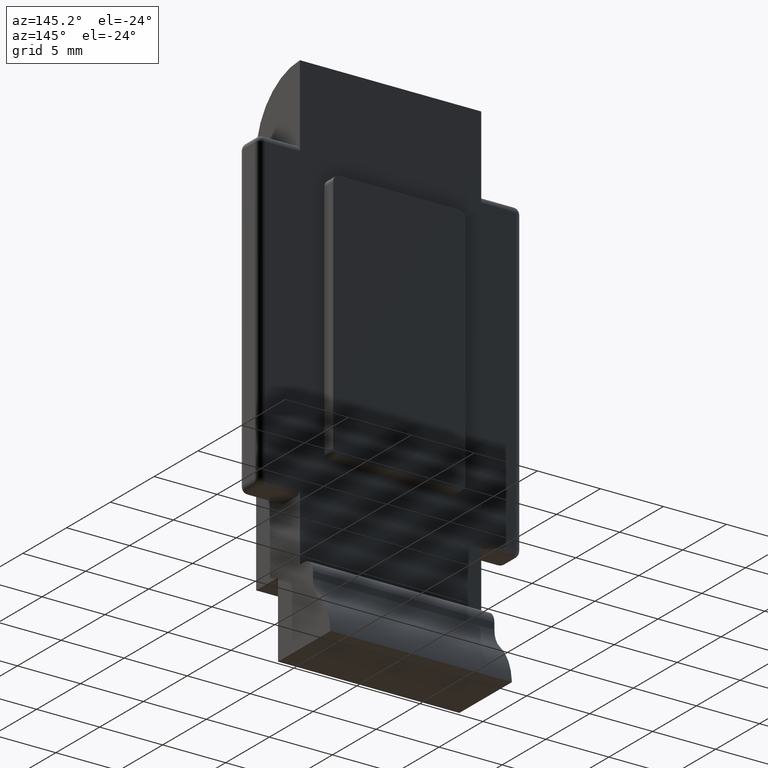
[diagram: clean part render]
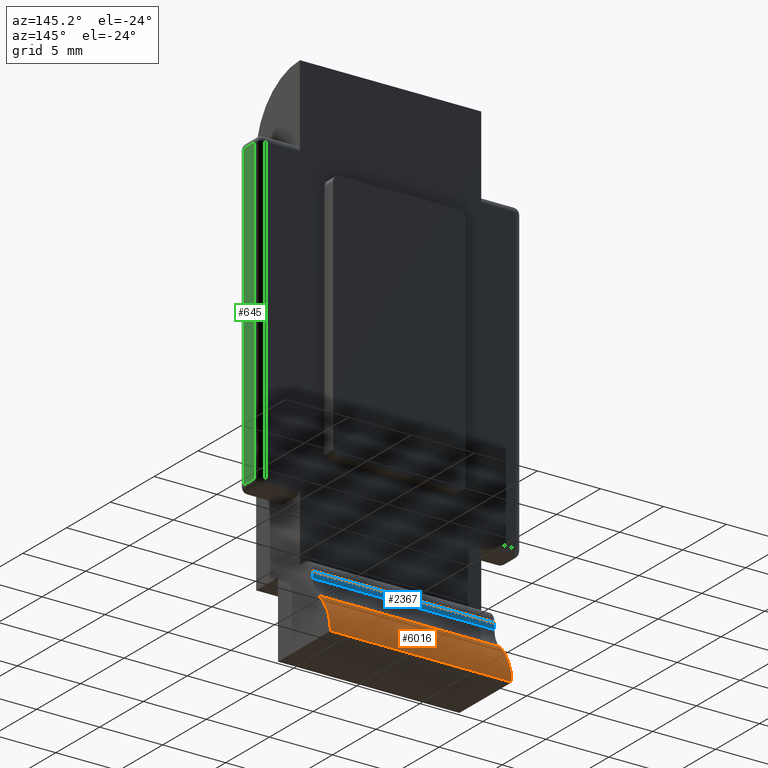
[diagram: same view with three faces highlighted in distinct colors, each labeled with its STEP entity id]
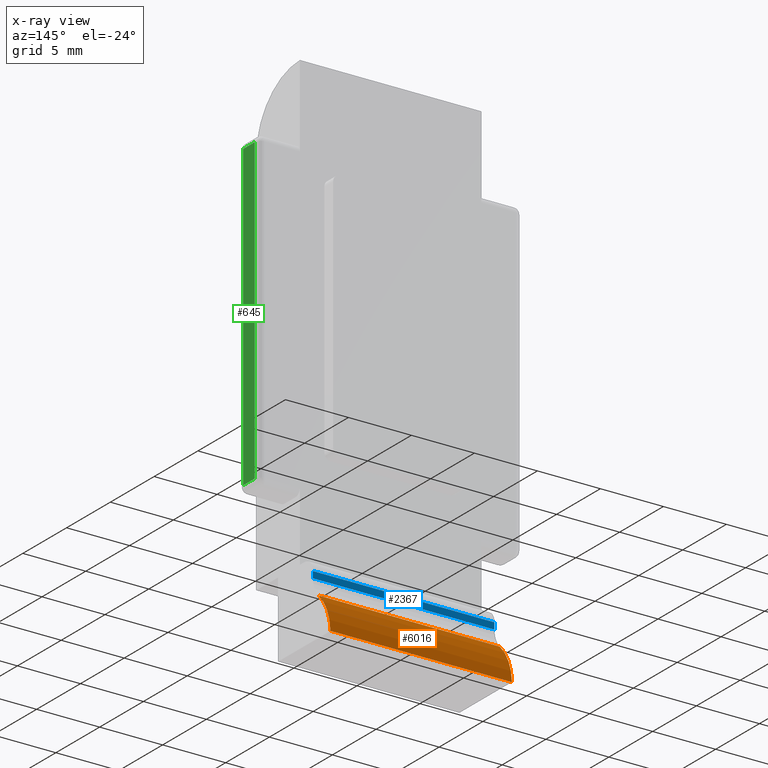
[diagram: x-ray of the same camera — body ghosted, the three highlighted faces saturated]
A machine part, auxiliary view with three faces highlighted in distinct colors.
The next image is the same camera in x-ray (body ghosted, the three faces saturated) — at least one of them is partly hidden behind the body in this view.
Their STEP definitions:

[orange] entity #6016 — the highlighted cylindrical surface (partial cylindrical patch) has radius 4.5 mm, axis along (1, 0, 0).
#326 = CYLINDRICAL_SURFACE ( 'NONE', #2310, 4.500000000000000900 ) ;
#992 = DIRECTION ( 'NONE',  ( -1.000000000000000000, -0.0000000000000000000, 0.0000000000000000000 ) ) ;
#1219 = DIRECTION ( 'NONE',  ( 1.000000000000000000, 0.0000000000000000000, 0.0000000000000000000 ) ) ;
#1513 = CARTESIAN_POINT ( 'NONE',  ( 14.40000000000000000, 3.499999999999996000, -5.999999999999998200 ) ) ;
#1570 = ORIENTED_EDGE ( 'NONE', *, *, #4689, .T. ) ;
#1807 = AXIS2_PLACEMENT_3D ( 'NONE', #7239, #992, #7961 ) ;
#1856 = CARTESIAN_POINT ( 'NONE',  ( 0.0000000000000000000, 2.116967167152068500, -2.964465433511271500 ) ) ;
#2310 = AXIS2_PLACEMENT_3D ( 'NONE', #7751, #5534, #6334 ) ;
#2403 = ORIENTED_EDGE ( 'NONE', *, *, #3708, .F. ) ;
#3168 = VERTEX_POINT ( 'NONE', #1856 ) ;
#3207 = DIRECTION ( 'NONE',  ( 1.000000000000000000, 0.0000000000000000000, 0.0000000000000000000 ) ) ;
#3708 = EDGE_CURVE ( 'NONE', #3168, #9021, #6477, .T. ) ;
#3819 = ORIENTED_EDGE ( 'NONE', *, *, #5608, .T. ) ;
#3828 = VECTOR ( 'NONE', #1219, 1000.000000000000000 ) ;
#3911 = DIRECTION ( 'NONE',  ( 0.0000000000000000000, 0.0000000000000000000, 1.000000000000000000 ) ) ;
#4429 = ORIENTED_EDGE ( 'NONE', *, *, #6787, .F. ) ;
#4550 = CARTESIAN_POINT ( 'NONE',  ( 0.0000000000000000000, 3.499999999999996000, -5.999999999999998200 ) ) ;
#4689 = EDGE_CURVE ( 'NONE', #3168, #8885, #5368, .T. ) ;
#5368 = LINE ( 'NONE', #5800, #3828 ) ;
#5534 = DIRECTION ( 'NONE',  ( 1.000000000000000000, 0.0000000000000000000, 0.0000000000000000000 ) ) ;
#5608 = EDGE_CURVE ( 'NONE', #8885, #6859, #8456, .T. ) ;
#5625 = CARTESIAN_POINT ( 'NONE',  ( 14.40000000000000000, 2.116967167152068500, -2.964465433511271500 ) ) ;
#5800 = CARTESIAN_POINT ( 'NONE',  ( 0.0000000000000000000, 2.116967167152068900, -2.964465433511271500 ) ) ;
#6016 = ADVANCED_FACE ( 'NONE', ( #9541 ), #326, .T. ) ;
#6334 = DIRECTION ( 'NONE',  ( 0.0000000000000000000, 0.0000000000000000000, -1.000000000000000000 ) ) ;
#6344 = EDGE_LOOP ( 'NONE', ( #2403, #1570, #3819, #4429 ) ) ;
#6477 = CIRCLE ( 'NONE', #6561, 4.500000000000000900 ) ;
#6561 = AXIS2_PLACEMENT_3D ( 'NONE', #6919, #7585, #3911 ) ;
#6787 = EDGE_CURVE ( 'NONE', #9021, #6859, #8565, .T. ) ;
#6859 = VERTEX_POINT ( 'NONE', #1513 ) ;
#6919 = CARTESIAN_POINT ( 'NONE',  ( 0.0000000000000000000, -0.9948567067557664300, -6.215088785697316700 ) ) ;
#7239 = CARTESIAN_POINT ( 'NONE',  ( 14.40000000000000000, -0.9948567067557664300, -6.215088785697316700 ) ) ;
#7410 = CARTESIAN_POINT ( 'NONE',  ( 0.0000000000000000000, 3.499999999999996000, -5.999999999999998200 ) ) ;
#7585 = DIRECTION ( 'NONE',  ( -1.000000000000000000, -0.0000000000000000000, 0.0000000000000000000 ) ) ;
#7751 = CARTESIAN_POINT ( 'NONE',  ( 0.0000000000000000000, -0.9948567067557664300, -6.215088785697316700 ) ) ;
#7961 = DIRECTION ( 'NONE',  ( 0.0000000000000000000, 0.0000000000000000000, 1.000000000000000000 ) ) ;
#8338 = VECTOR ( 'NONE', #3207, 1000.000000000000000 ) ;
#8456 = CIRCLE ( 'NONE', #1807, 4.500000000000000900 ) ;
#8565 = LINE ( 'NONE', #4550, #8338 ) ;
#8885 = VERTEX_POINT ( 'NONE', #5625 ) ;
#9021 = VERTEX_POINT ( 'NONE', #7410 ) ;
#9541 = FACE_OUTER_BOUND ( 'NONE', #6344, .T. ) ;

[blue] entity #2367 — the highlighted planar face has unit normal (0, 1, 0).
#90 = VERTEX_POINT ( 'NONE', #480 ) ;
#480 = CARTESIAN_POINT ( 'NONE',  ( 14.40000000000000000, 1.499999999999995300, -1.000000000000000900 ) ) ;
#965 = AXIS2_PLACEMENT_3D ( 'NONE', #5917, #5097, #3630 ) ;
#1069 = VECTOR ( 'NONE', #4780, 1000.000000000000000 ) ;
#1165 = ORIENTED_EDGE ( 'NONE', *, *, #5620, .T. ) ;
#1536 = ORIENTED_EDGE ( 'NONE', *, *, #9893, .T. ) ;
#1733 = CARTESIAN_POINT ( 'NONE',  ( 14.40000000000000000, 1.499999999999995300, -1.519743943650807300 ) ) ;
#1978 = VECTOR ( 'NONE', #6596, 1000.000000000000000 ) ;
#2001 = LINE ( 'NONE', #3443, #2115 ) ;
#2093 = CARTESIAN_POINT ( 'NONE',  ( 0.0000000000000000000, 1.499999999999995300, -1.519743943650807300 ) ) ;
#2115 = VECTOR ( 'NONE', #2590, 1000.000000000000000 ) ;
#2367 = ADVANCED_FACE ( 'NONE', ( #8510 ), #9795, .T. ) ;
#2406 = VERTEX_POINT ( 'NONE', #9080 ) ;
#2496 = EDGE_LOOP ( 'NONE', ( #1165, #9029, #4348, #1536 ) ) ;
#2590 = DIRECTION ( 'NONE',  ( 0.0000000000000000000, 0.0000000000000000000, 1.000000000000000000 ) ) ;
#3443 = CARTESIAN_POINT ( 'NONE',  ( 0.0000000000000000000, 1.499999999999995300, -2.469999999999999800 ) ) ;
#3507 = CARTESIAN_POINT ( 'NONE',  ( 0.0000000000000000000, 1.499999999999995300, -1.000000000000000900 ) ) ;
#3630 = DIRECTION ( 'NONE',  ( 0.0000000000000000000, -0.0000000000000000000, 1.000000000000000000 ) ) ;
#4021 = VECTOR ( 'NONE', #5881, 1000.000000000000000 ) ;
#4330 = EDGE_CURVE ( 'NONE', #7040, #90, #6103, .T. ) ;
#4348 = ORIENTED_EDGE ( 'NONE', *, *, #7993, .F. ) ;
#4780 = DIRECTION ( 'NONE',  ( 1.000000000000000000, -0.0000000000000000000, 0.0000000000000000000 ) ) ;
#4992 = LINE ( 'NONE', #8858, #1978 ) ;
#5097 = DIRECTION ( 'NONE',  ( 0.0000000000000000000, 1.000000000000000000, 0.0000000000000000000 ) ) ;
#5620 = EDGE_CURVE ( 'NONE', #2406, #7040, #2001, .T. ) ;
#5881 = DIRECTION ( 'NONE',  ( -1.000000000000000000, -0.0000000000000000000, -0.0000000000000000000 ) ) ;
#5917 = CARTESIAN_POINT ( 'NONE',  ( 0.0000000000000000000, 1.499999999999995300, -2.469999999999999800 ) ) ;
#6103 = LINE ( 'NONE', #7797, #1069 ) ;
#6596 = DIRECTION ( 'NONE',  ( 0.0000000000000000000, 0.0000000000000000000, 1.000000000000000000 ) ) ;
#7040 = VERTEX_POINT ( 'NONE', #3507 ) ;
#7797 = CARTESIAN_POINT ( 'NONE',  ( 0.0000000000000000000, 1.499999999999995300, -1.000000000000000900 ) ) ;
#7925 = LINE ( 'NONE', #2093, #4021 ) ;
#7993 = EDGE_CURVE ( 'NONE', #8866, #90, #4992, .T. ) ;
#8510 = FACE_OUTER_BOUND ( 'NONE', #2496, .T. ) ;
#8858 = CARTESIAN_POINT ( 'NONE',  ( 14.40000000000000000, 1.499999999999995300, -2.469999999999999800 ) ) ;
#8866 = VERTEX_POINT ( 'NONE', #1733 ) ;
#9029 = ORIENTED_EDGE ( 'NONE', *, *, #4330, .T. ) ;
#9080 = CARTESIAN_POINT ( 'NONE',  ( 0.0000000000000000000, 1.499999999999995300, -1.519743943650807300 ) ) ;
#9795 = PLANE ( 'NONE',  #965 ) ;
#9893 = EDGE_CURVE ( 'NONE', #8866, #2406, #7925, .T. ) ;

[green] entity #645 — the highlighted planar face has unit normal (-1, 0, 0).
#645 = ADVANCED_FACE ( 'NONE', ( #7909 ), #9034, .F. ) ;
#805 = EDGE_CURVE ( 'NONE', #5301, #8204, #5304, .T. ) ;
#943 = CARTESIAN_POINT ( 'NONE',  ( 17.64999999999999900, -1.799999999999996900, 29.50000000000000000 ) ) ;
#1092 = VECTOR ( 'NONE', #4594, 1000.000000000000000 ) ;
#1109 = CARTESIAN_POINT ( 'NONE',  ( 17.64999999999999900, -1.799999999999996900, 5.499999999999998200 ) ) ;
#1540 = ORIENTED_EDGE ( 'NONE', *, *, #2969, .T. ) ;
#2223 = DIRECTION ( 'NONE',  ( 0.0000000000000000000, 1.000000000000000000, 0.0000000000000000000 ) ) ;
#2526 = ORIENTED_EDGE ( 'NONE', *, *, #3387, .T. ) ;
#2539 = EDGE_LOOP ( 'NONE', ( #1540, #2526, #4474, #4048 ) ) ;
#2568 = CARTESIAN_POINT ( 'NONE',  ( 17.64999999999999900, -1.799999999999996900, 0.0000000000000000000 ) ) ;
#2969 = EDGE_CURVE ( 'NONE', #3950, #7778, #8990, .T. ) ;
#2992 = VECTOR ( 'NONE', #8757, 1000.000000000000000 ) ;
#3387 = EDGE_CURVE ( 'NONE', #7778, #5301, #3490, .T. ) ;
#3490 = LINE ( 'NONE', #8391, #1092 ) ;
#3643 = VECTOR ( 'NONE', #7737, 1000.000000000000000 ) ;
#3770 = DIRECTION ( 'NONE',  ( -1.000000000000000000, 0.0000000000000000000, 0.0000000000000000000 ) ) ;
#3853 = CARTESIAN_POINT ( 'NONE',  ( 17.64999999999999900, -0.5000000000000035500, 29.50000000000000000 ) ) ;
#3950 = VERTEX_POINT ( 'NONE', #1109 ) ;
#3964 = EDGE_CURVE ( 'NONE', #8204, #3950, #7038, .T. ) ;
#4048 = ORIENTED_EDGE ( 'NONE', *, *, #3964, .T. ) ;
#4474 = ORIENTED_EDGE ( 'NONE', *, *, #805, .T. ) ;
#4594 = DIRECTION ( 'NONE',  ( 0.0000000000000000000, -1.224646799147353000E-016, 1.000000000000000000 ) ) ;
#5073 = CARTESIAN_POINT ( 'NONE',  ( 17.64999999999999900, 0.0000000000000000000, 0.0000000000000000000 ) ) ;
#5301 = VERTEX_POINT ( 'NONE', #3853 ) ;
#5304 = LINE ( 'NONE', #6936, #3643 ) ;
#6119 = CARTESIAN_POINT ( 'NONE',  ( 17.64999999999999900, 0.0000000000000000000, 5.499999999999998200 ) ) ;
#6292 = AXIS2_PLACEMENT_3D ( 'NONE', #5073, #3770, #9903 ) ;
#6936 = CARTESIAN_POINT ( 'NONE',  ( 17.64999999999999900, 0.0000000000000000000, 29.50000000000000000 ) ) ;
#6939 = VECTOR ( 'NONE', #2223, 1000.000000000000000 ) ;
#7038 = LINE ( 'NONE', #2568, #2992 ) ;
#7737 = DIRECTION ( 'NONE',  ( 0.0000000000000000000, -1.000000000000000000, 0.0000000000000000000 ) ) ;
#7778 = VERTEX_POINT ( 'NONE', #9257 ) ;
#7909 = FACE_OUTER_BOUND ( 'NONE', #2539, .T. ) ;
#8204 = VERTEX_POINT ( 'NONE', #943 ) ;
#8391 = CARTESIAN_POINT ( 'NONE',  ( 17.64999999999999900, -0.5000000000000000000, 0.0000000000000000000 ) ) ;
#8757 = DIRECTION ( 'NONE',  ( 0.0000000000000000000, 0.0000000000000000000, -1.000000000000000000 ) ) ;
#8990 = LINE ( 'NONE', #6119, #6939 ) ;
#9034 = PLANE ( 'NONE',  #6292 ) ;
#9257 = CARTESIAN_POINT ( 'NONE',  ( 17.64999999999999900, -0.5000000000000006700, 5.499999999999998200 ) ) ;
#9903 = DIRECTION ( 'NONE',  ( 0.0000000000000000000, 0.0000000000000000000, 1.000000000000000000 ) ) ;